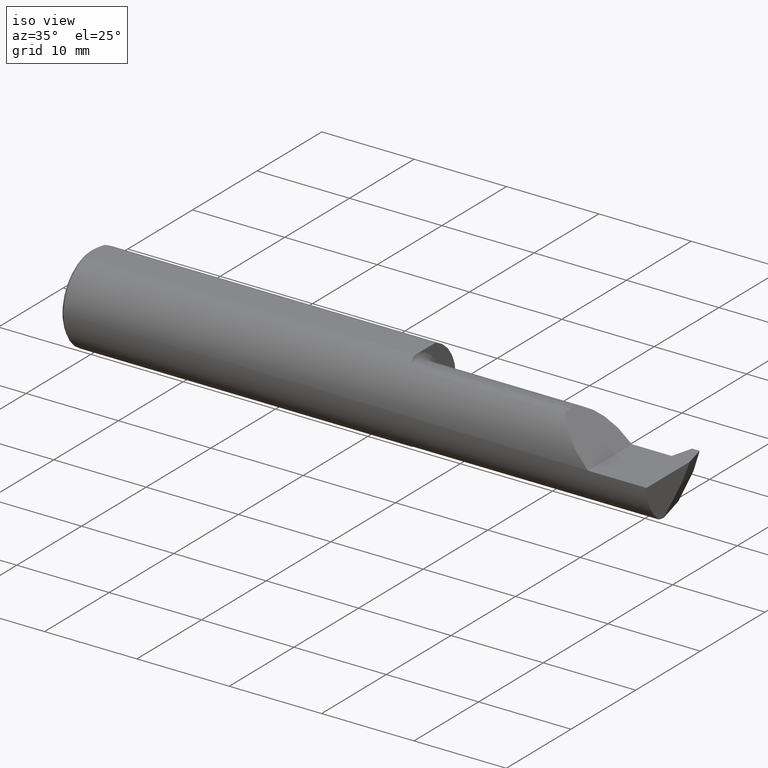
[diagram: clean part render]
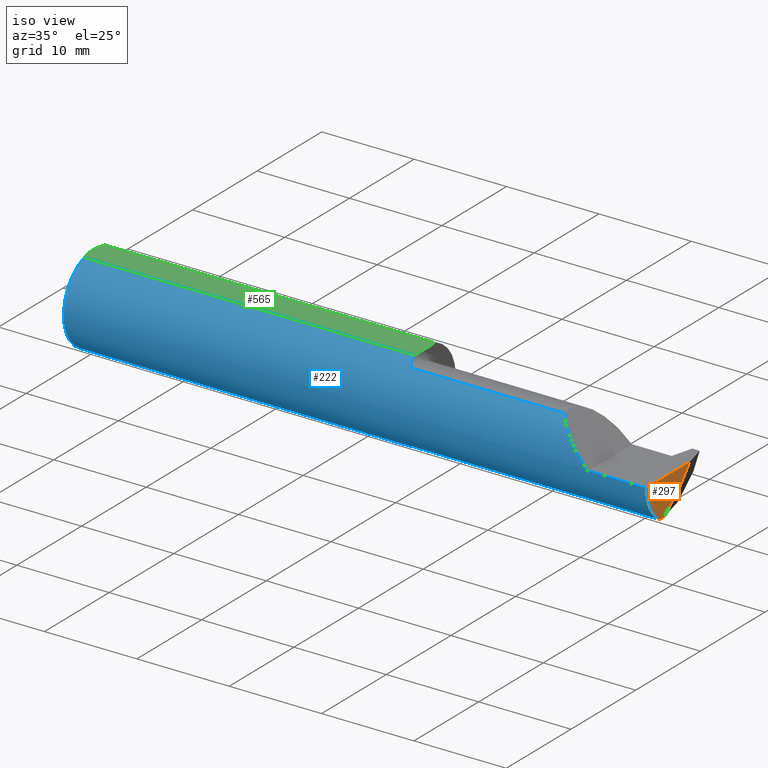
[diagram: same view with three faces highlighted in distinct colors, each labeled with its STEP entity id]
A machine part, iso view with three faces highlighted in distinct colors.
Their STEP definitions:

[orange] entity #297 — the highlighted planar face has unit normal (1, 0, 0).
#3 = VERTEX_POINT ( 'NONE', #661 ) ;
#19 = VECTOR ( 'NONE', #553, 39.37007874015748854 ) ;
#117 = DIRECTION ( 'NONE',  ( 0.000000000000000000, 0.000000000000000000, -1.000000000000000000 ) ) ;
#139 = CARTESIAN_POINT ( 'NONE',  ( 2.500000000000000000, 0.000000000000000000, 0.000000000000000000 ) ) ;
#152 = EDGE_CURVE ( 'NONE', #3, #543, #857, .T. ) ;
#161 = EDGE_CURVE ( 'NONE', #162, #543, #761, .T. ) ;
#162 = VERTEX_POINT ( 'NONE', #919 ) ;
#211 = ORIENTED_EDGE ( 'NONE', *, *, #152, .T. ) ;
#213 = LINE ( 'NONE', #965, #301 ) ;
#292 = VERTEX_POINT ( 'NONE', #495 ) ;
#297 = ADVANCED_FACE ( 'NONE', ( #419 ), #640, .T. ) ;
#301 = VECTOR ( 'NONE', #519, 39.37007874015748143 ) ;
#331 = CARTESIAN_POINT ( 'NONE',  ( 2.500000000000000000, 0.000000000000000000, 0.000000000000000000 ) ) ;
#340 = VERTEX_POINT ( 'NONE', #946 ) ;
#354 = CARTESIAN_POINT ( 'NONE',  ( 2.500000000000000000, -0.08199235869078237704, -0.1548576090188111543 ) ) ;
#409 = DIRECTION ( 'NONE',  ( 1.000000000000000000, 0.000000000000000000, 0.000000000000000000 ) ) ;
#419 = FACE_OUTER_BOUND ( 'NONE', #616, .T. ) ;
#429 = VECTOR ( 'NONE', #696, 39.37007874015748143 ) ;
#464 = CARTESIAN_POINT ( 'NONE',  ( 2.500000000000000000, 0.01913700171634197256, -0.06999999999999920175 ) ) ;
#495 = CARTESIAN_POINT ( 'NONE',  ( 2.500000000000000000, 0.07784888572242874838, 0.000000000000000000 ) ) ;
#502 = CARTESIAN_POINT ( 'NONE',  ( 2.500000000000000000, 0.04569972933712738300, -0.03833024582787393497 ) ) ;
#514 = LINE ( 'NONE', #502, #19 ) ;
#519 = DIRECTION ( 'NONE',  ( -0.000000000000000000, 1.000000000000000000, -0.000000000000000000 ) ) ;
#527 = ORIENTED_EDGE ( 'NONE', *, *, #528, .F. ) ;
#528 = EDGE_CURVE ( 'NONE', #340, #292, #213, .T. ) ;
#533 = EDGE_CURVE ( 'NONE', #340, #3, #854, .T. ) ;
#543 = VERTEX_POINT ( 'NONE', #354 ) ;
#553 = DIRECTION ( 'NONE',  ( 0.000000000000000000, -0.6426264403010705228, -0.7661796514042739092 ) ) ;
#615 = ORIENTED_EDGE ( 'NONE', *, *, #896, .F. ) ;
#616 = EDGE_LOOP ( 'NONE', ( #211, #930, #615, #527, #698 ) ) ;
#640 = PLANE ( 'NONE',  #836 ) ;
#661 = CARTESIAN_POINT ( 'NONE',  ( 2.500000000000000000, -0.1111655275381552010, -0.1508053314281814494 ) ) ;
#675 = DIRECTION ( 'NONE',  ( 0.000000000000000000, 0.000000000000000000, -1.000000000000000000 ) ) ;
#676 = CARTESIAN_POINT ( 'NONE',  ( 2.500000000000000000, -0.07535000000000005582, 0.000000000000000000 ) ) ;
#687 = DIRECTION ( 'NONE',  ( 1.000000000000000000, -0.000000000000000000, -0.000000000000000000 ) ) ;
#696 = DIRECTION ( 'NONE',  ( 0.000000000000000000, -0.7660444431189792347, -0.6427876096865379196 ) ) ;
#698 = ORIENTED_EDGE ( 'NONE', *, *, #533, .T. ) ;
#746 = DIRECTION ( 'NONE',  ( 1.000000000000000000, 0.000000000000000000, 0.000000000000000000 ) ) ;
#761 = LINE ( 'NONE', #464, #429 ) ;
#810 = AXIS2_PLACEMENT_3D ( 'NONE', #676, #687, #907 ) ;
#836 = AXIS2_PLACEMENT_3D ( 'NONE', #331, #409, #117 ) ;
#854 = CIRCLE ( 'NONE', #933, 0.1873499999999999888 ) ;
#857 = CIRCLE ( 'NONE', #810, 0.1549999999999999434 ) ;
#896 = EDGE_CURVE ( 'NONE', #292, #162, #514, .T. ) ;
#907 = DIRECTION ( 'NONE',  ( 0.000000000000000000, 0.000000000000000000, 1.000000000000000000 ) ) ;
#919 = CARTESIAN_POINT ( 'NONE',  ( 2.500000000000000000, 0.01913700171634197256, -0.06999999999999920175 ) ) ;
#930 = ORIENTED_EDGE ( 'NONE', *, *, #161, .F. ) ;
#933 = AXIS2_PLACEMENT_3D ( 'NONE', #139, #746, #675 ) ;
#946 = CARTESIAN_POINT ( 'NONE',  ( 2.500000000000000000, -0.1873500000000000165, -4.469813191451678053E-17 ) ) ;
#965 = CARTESIAN_POINT ( 'NONE',  ( 2.500000000000000000, 0.2000000000000000111, -4.469813191451678053E-17 ) ) ;

[blue] entity #222 — the highlighted cylindrical surface (partial cylindrical patch) has radius 4.7587 mm, axis along (-1, -0, -0).
#3 = VERTEX_POINT ( 'NONE', #661 ) ;
#11 = CARTESIAN_POINT ( 'NONE',  ( 1.447840824787754999, -0.1111655275381552566, 0.1508053314281813939 ) ) ;
#12 = CARTESIAN_POINT ( 'NONE',  ( 1.425000000000000266, 0.06325108694718213631, 0.1763499999999999790 ) ) ;
#15 = EDGE_LOOP ( 'NONE', ( #478, #164, #891, #99, #630, #54, #670, #855, #622, #92, #739, #633, #674, #884, #693 ) ) ;
#22 = VECTOR ( 'NONE', #897, 39.37007874015748143 ) ;
#35 = B_SPLINE_CURVE_WITH_KNOTS ( 'NONE', 3,
 ( #342, #273, #401, #729, #41, #187, #494, #346, #116, #644, #941, #873 ),
 .UNSPECIFIED., .F., .F.,
 ( 4, 2, 2, 2, 2, 4 ),
 ( 0.0005353161947638540065, 0.0008532056447682662310, 0.001171095094772678456, 0.001488984544777090680, 0.001647929269779296792, 0.001806873994781502905 ),
 .UNSPECIFIED. ) ;
#36 = CARTESIAN_POINT ( 'NONE',  ( 1.425000000000000266, 0.000000000000000000, 0.000000000000000000 ) ) ;
#39 = FACE_OUTER_BOUND ( 'NONE', #15, .T. ) ;
#41 = CARTESIAN_POINT ( 'NONE',  ( 1.431244079504313538, -0.09361870253556393850, -0.1623293170049111833 ) ) ;
#50 = CARTESIAN_POINT ( 'NONE',  ( 0.01500000000000079568, 0.000000000000000000, 0.000000000000000000 ) ) ;
#54 = ORIENTED_EDGE ( 'NONE', *, *, #215, .F. ) ;
#57 = CARTESIAN_POINT ( 'NONE',  ( 2.250000000000000000, 0.000000000000000000, 0.000000000000000000 ) ) ;
#64 = CIRCLE ( 'NONE', #199, 0.1873499999999999888 ) ;
#69 = CIRCLE ( 'NONE', #286, 0.1873499999999999888 ) ;
#87 = VERTEX_POINT ( 'NONE', #830 ) ;
#90 = DIRECTION ( 'NONE',  ( 1.000000000000000000, 0.000000000000000000, 0.000000000000000000 ) ) ;
#92 = ORIENTED_EDGE ( 'NONE', *, *, #195, .T. ) ;
#99 = ORIENTED_EDGE ( 'NONE', *, *, #539, .T. ) ;
#109 = B_SPLINE_CURVE_WITH_KNOTS ( 'NONE', 3,
 ( #978, #157, #238, #767 ),
 .UNSPECIFIED., .F., .F.,
 ( 4, 4 ),
 ( 0.000000000000000000, 0.0005353161947638540065 ),
 .UNSPECIFIED. ) ;
#113 = CYLINDRICAL_SURFACE ( 'NONE', #332, 0.1873499999999999888 ) ;
#116 = CARTESIAN_POINT ( 'NONE',  ( 1.442175898121774713, -0.1087238381091982370, -0.1525793326322721077 ) ) ;
#121 = CARTESIAN_POINT ( 'NONE',  ( 1.450000000000000178, -0.1111655275381552427, 0.1508053314281814494 ) ) ;
#129 = CIRCLE ( 'NONE', #685, 0.1873499999999999888 ) ;
#136 = CARTESIAN_POINT ( 'NONE',  ( 1.425439896557285868, -0.06737885671737320337, 0.1748695014197203801 ) ) ;
#139 = CARTESIAN_POINT ( 'NONE',  ( 2.500000000000000000, 0.000000000000000000, 0.000000000000000000 ) ) ;
#156 = CARTESIAN_POINT ( 'NONE',  ( 1.431253303781169661, -0.09363708362384966233, 0.1623181733163006346 ) ) ;
#157 = CARTESIAN_POINT ( 'NONE',  ( 1.425000000000000266, -0.06239895713696063523, -0.1767970804181337729 ) ) ;
#163 = EDGE_CURVE ( 'NONE', #905, #908, #109, .T. ) ;
#164 = ORIENTED_EDGE ( 'NONE', *, *, #533, .F. ) ;
#178 = CARTESIAN_POINT ( 'NONE',  ( 2.099544668571818207, -0.1111655275381547570, 0.1508053314281816715 ) ) ;
#180 = CARTESIAN_POINT ( 'NONE',  ( 1.425000000000000266, -0.05559153948241538773, -0.1789122780526117285 ) ) ;
#187 = CARTESIAN_POINT ( 'NONE',  ( 1.434565425567610131, -0.1003007981862104464, -0.1582877711856871539 ) ) ;
#190 = CARTESIAN_POINT ( 'NONE',  ( 2.500000000000000000, 0.000000000000000000, 0.000000000000000000 ) ) ;
#195 = EDGE_CURVE ( 'NONE', #915, #481, #129, .T. ) ;
#196 = DIRECTION ( 'NONE',  ( 0.000000000000000000, 0.000000000000000000, -1.000000000000000000 ) ) ;
#197 = CIRCLE ( 'NONE', #753, 0.1873499999999999888 ) ;
#199 = AXIS2_PLACEMENT_3D ( 'NONE', #50, #733, #196 ) ;
#209 = CARTESIAN_POINT ( 'NONE',  ( 1.426478687487613639, -0.07534999999999991704, 0.1715295892841814940 ) ) ;
#210 = CARTESIAN_POINT ( 'NONE',  ( 2.189466948591779705, -0.1872365873764759991, 0.06088305140821962530 ) ) ;
#215 = EDGE_CURVE ( 'NONE', #702, #319, #872, .T. ) ;
#222 = ADVANCED_FACE ( 'NONE', ( #39 ), #113, .T. ) ;
#238 = CARTESIAN_POINT ( 'NONE',  ( 1.425471628390130308, -0.06898398245409141649, -0.1743260713610383095 ) ) ;
#239 = VERTEX_POINT ( 'NONE', #12 ) ;
#241 = CARTESIAN_POINT ( 'NONE',  ( 2.500000000000000000, -0.06325108694718213631, 0.1763499999999999790 ) ) ;
#244 = DIRECTION ( 'NONE',  ( -1.000000000000000000, -0.000000000000000000, -0.000000000000000000 ) ) ;
#252 = VECTOR ( 'NONE', #90, 39.37007874015748143 ) ;
#273 = CARTESIAN_POINT ( 'NONE',  ( 1.427076714346777742, -0.07913036352372353199, -0.1698689405721950929 ) ) ;
#277 =( BOUNDED_CURVE ( )  B_SPLINE_CURVE ( 3, ( #743, #210, #516, #440 ),
 .UNSPECIFIED., .F., .T. ) 
 B_SPLINE_CURVE_WITH_KNOTS ( ( 4, 4 ),
 ( 4.714257142666966161, 5.647961724597865718 ),
 .UNSPECIFIED. ) 
 CURVE ( )  GEOMETRIC_REPRESENTATION_ITEM ( )  RATIONAL_B_SPLINE_CURVE ( ( 1.000000000000000000, 0.9286596154903572486, 0.9286596154903572486, 1.000000000000000000 ) ) 
 REPRESENTATION_ITEM ( '' )  );
#286 = AXIS2_PLACEMENT_3D ( 'NONE', #57, #298, #599 ) ;
#298 = DIRECTION ( 'NONE',  ( -1.000000000000000000, -0.000000000000000000, -0.000000000000000000 ) ) ;
#319 = VERTEX_POINT ( 'NONE', #178 ) ;
#332 = AXIS2_PLACEMENT_3D ( 'NONE', #190, #244, #800 ) ;
#335 = CARTESIAN_POINT ( 'NONE',  ( 1.426478687487605646, -0.07534999999994895781, -0.1715295892842039482 ) ) ;
#340 = VERTEX_POINT ( 'NONE', #946 ) ;
#342 = CARTESIAN_POINT ( 'NONE',  ( 1.426478687487605646, -0.07534999999994895781, -0.1715295892842039482 ) ) ;
#346 = CARTESIAN_POINT ( 'NONE',  ( 1.440623984237018762, -0.1074936703607914240, -0.1534529456673628667 ) ) ;
#367 = EDGE_CURVE ( 'NONE', #3, #559, #856, .T. ) ;
#371 = CARTESIAN_POINT ( 'NONE',  ( 2.500000000000000000, 0.06325108694718213631, 0.1763499999999999790 ) ) ;
#376 = VECTOR ( 'NONE', #904, 39.37007874015748143 ) ;
#394 = CARTESIAN_POINT ( 'NONE',  ( 0.01500000000000016251, -0.06325108694718359348, 0.1763499999999999790 ) ) ;
#396 = CARTESIAN_POINT ( 'NONE',  ( 0.01500000000000079568, 0.000000000000000000, 0.000000000000000000 ) ) ;
#401 = CARTESIAN_POINT ( 'NONE',  ( 1.427865082443893652, -0.08283314709417988198, -0.1680932348365286877 ) ) ;
#411 = VERTEX_POINT ( 'NONE', #522 ) ;
#420 = DIRECTION ( 'NONE',  ( 1.000000000000000000, -0.000000000000000000, -0.000000000000000000 ) ) ;
#437 = CARTESIAN_POINT ( 'NONE',  ( 2.250000000000000000, -0.1873499999999999888, -4.469813191451678053E-17 ) ) ;
#440 = CARTESIAN_POINT ( 'NONE',  ( 2.099544668571818207, -0.1111655275381547570, 0.1508053314281816715 ) ) ;
#444 = CARTESIAN_POINT ( 'NONE',  ( 1.425210246786176915, -0.06325108694718213631, 0.1763499999999999790 ) ) ;
#447 = CARTESIAN_POINT ( 'NONE',  ( 1.440624326360086638, -0.1074933921529483416, 0.1534530870474001274 ) ) ;
#459 = CARTESIAN_POINT ( 'NONE',  ( 1.429954557781144331, -0.09009039404888789793, 0.1643178600608700690 ) ) ;
#465 = EDGE_CURVE ( 'NONE', #87, #319, #277, .T. ) ;
#472 = EDGE_CURVE ( 'NONE', #486, #239, #738, .T. ) ;
#473 = EDGE_CURVE ( 'NONE', #340, #484, #818, .T. ) ;
#475 = EDGE_CURVE ( 'NONE', #845, #411, #703, .T. ) ;
#478 = ORIENTED_EDGE ( 'NONE', *, *, #367, .F. ) ;
#481 = VERTEX_POINT ( 'NONE', #889 ) ;
#484 = VERTEX_POINT ( 'NONE', #437 ) ;
#485 = CARTESIAN_POINT ( 'NONE',  ( 1.922500000000000098, -0.1111655275381552427, -0.1508053314281814494 ) ) ;
#486 = VERTEX_POINT ( 'NONE', #882 ) ;
#492 = CARTESIAN_POINT ( 'NONE',  ( 1.922500000000000098, -0.1111655275381552427, 0.1508053314281814494 ) ) ;
#494 = CARTESIAN_POINT ( 'NONE',  ( 1.436554031168356005, -0.1034518926464918220, -0.1562319468430166391 ) ) ;
#505 = VECTOR ( 'NONE', #942, 39.37007874015748143 ) ;
#516 = CARTESIAN_POINT ( 'NONE',  ( 2.135462471271803331, -0.1598910295916955993, 0.1148875287281965335 ) ) ;
#522 = CARTESIAN_POINT ( 'NONE',  ( 1.425210246786176915, -0.06325108694718213631, 0.1763499999999999790 ) ) ;
#524 = CARTESIAN_POINT ( 'NONE',  ( 1.426478687487613639, -0.07534999999999991704, 0.1715295892841814940 ) ) ;
#533 = EDGE_CURVE ( 'NONE', #340, #3, #854, .T. ) ;
#539 = EDGE_CURVE ( 'NONE', #484, #87, #69, .T. ) ;
#559 = VERTEX_POINT ( 'NONE', #953 ) ;
#591 = DIRECTION ( 'NONE',  ( -1.000000000000000000, -0.000000000000000000, -0.000000000000000000 ) ) ;
#597 = CARTESIAN_POINT ( 'NONE',  ( 2.500000000000000000, -0.1873499999999999888, -4.469813191451678053E-17 ) ) ;
#599 = DIRECTION ( 'NONE',  ( 0.000000000000000000, 0.000000000000000000, 1.000000000000000000 ) ) ;
#603 = CARTESIAN_POINT ( 'NONE',  ( 1.427079511614913754, -0.07914804615830652035, 0.1698611728947836963 ) ) ;
#622 = ORIENTED_EDGE ( 'NONE', *, *, #968, .T. ) ;
#624 = CARTESIAN_POINT ( 'NONE',  ( 1.442178388317598259, -0.1087237717143361843, 0.1525793417461625279 ) ) ;
#630 = ORIENTED_EDGE ( 'NONE', *, *, #465, .T. ) ;
#633 = ORIENTED_EDGE ( 'NONE', *, *, #472, .T. ) ;
#644 = CARTESIAN_POINT ( 'NONE',  ( 1.445787183057445136, -0.1105751300725857506, -0.1512430703507947061 ) ) ;
#657 = EDGE_CURVE ( 'NONE', #702, #845, #763, .T. ) ;
#661 = CARTESIAN_POINT ( 'NONE',  ( 2.500000000000000000, -0.1111655275381552010, -0.1508053314281814494 ) ) ;
#669 = CARTESIAN_POINT ( 'NONE',  ( 1.425855685269239892, -0.07141175738523403149, 0.1732595915669420672 ) ) ;
#670 = ORIENTED_EDGE ( 'NONE', *, *, #657, .T. ) ;
#674 = ORIENTED_EDGE ( 'NONE', *, *, #745, .F. ) ;
#675 = DIRECTION ( 'NONE',  ( 0.000000000000000000, 0.000000000000000000, -1.000000000000000000 ) ) ;
#681 = CARTESIAN_POINT ( 'NONE',  ( 1.427871177471788711, -0.08285827945689638874, 0.1680807655869951678 ) ) ;
#685 = AXIS2_PLACEMENT_3D ( 'NONE', #396, #420, #947 ) ;
#686 = CARTESIAN_POINT ( 'NONE',  ( 1.450000000000000178, -0.1111655275381552427, 0.1508053314281814494 ) ) ;
#693 = ORIENTED_EDGE ( 'NONE', *, *, #749, .T. ) ;
#702 = VERTEX_POINT ( 'NONE', #121 ) ;
#703 = B_SPLINE_CURVE_WITH_KNOTS ( 'NONE', 3,
 ( #524, #669, #136, #444 ),
 .UNSPECIFIED., .F., .F.,
 ( 4, 4 ),
 ( 0.001294476306160001564, 0.001630041063685024744 ),
 .UNSPECIFIED. ) ;
#711 = VECTOR ( 'NONE', #591, 39.37007874015748143 ) ;
#718 = DIRECTION ( 'NONE',  ( 1.000000000000000000, 0.000000000000000000, 0.000000000000000000 ) ) ;
#729 = CARTESIAN_POINT ( 'NONE',  ( 1.429948053471883807, -0.09007176591159221646, -0.1643281559590496765 ) ) ;
#733 = DIRECTION ( 'NONE',  ( 1.000000000000000000, -0.000000000000000000, -0.000000000000000000 ) ) ;
#738 = LINE ( 'NONE', #371, #22 ) ;
#739 = ORIENTED_EDGE ( 'NONE', *, *, #892, .T. ) ;
#743 = CARTESIAN_POINT ( 'NONE',  ( 2.250000000000000000, -0.1873496730715054903, 0.0003499999999991848933 ) ) ;
#745 = EDGE_CURVE ( 'NONE', #905, #239, #197, .T. ) ;
#746 = DIRECTION ( 'NONE',  ( 1.000000000000000000, 0.000000000000000000, 0.000000000000000000 ) ) ;
#749 = EDGE_CURVE ( 'NONE', #908, #559, #35, .T. ) ;
#753 = AXIS2_PLACEMENT_3D ( 'NONE', #36, #718, #802 ) ;
#754 = CARTESIAN_POINT ( 'NONE',  ( 1.436565098989692979, -0.1034641170928918136, 0.1562236412899350446 ) ) ;
#760 = CARTESIAN_POINT ( 'NONE',  ( 1.434555280550786627, -0.1002805646452516880, 0.1583000352897936946 ) ) ;
#763 = B_SPLINE_CURVE_WITH_KNOTS ( 'NONE', 3,
 ( #686, #11, #839, #624, #447, #754, #760, #156, #459, #681, #603, #974 ),
 .UNSPECIFIED., .F., .F.,
 ( 4, 2, 2, 2, 2, 4 ),
 ( 0.000000000000000000, 0.0001618095382699952353, 0.0003236190765399904706, 0.0006472381530799941685, 0.0009708572296199979206, 0.001294476306160001564 ),
 .UNSPECIFIED. ) ;
#767 = CARTESIAN_POINT ( 'NONE',  ( 1.426478687487605646, -0.07534999999994895781, -0.1715295892842039482 ) ) ;
#800 = DIRECTION ( 'NONE',  ( 0.000000000000000000, 0.000000000000000000, 1.000000000000000000 ) ) ;
#802 = DIRECTION ( 'NONE',  ( 0.000000000000000000, 0.000000000000000000, -1.000000000000000000 ) ) ;
#818 = LINE ( 'NONE', #597, #711 ) ;
#830 = CARTESIAN_POINT ( 'NONE',  ( 2.250000000000000000, -0.1873496730715054903, 0.0003499999999991848933 ) ) ;
#839 = CARTESIAN_POINT ( 'NONE',  ( 1.445768331180431909, -0.1105668026956974082, 0.1512491196838317842 ) ) ;
#845 = VERTEX_POINT ( 'NONE', #209 ) ;
#854 = CIRCLE ( 'NONE', #933, 0.1873499999999999888 ) ;
#855 = ORIENTED_EDGE ( 'NONE', *, *, #475, .T. ) ;
#856 = LINE ( 'NONE', #485, #505 ) ;
#872 = LINE ( 'NONE', #492, #252 ) ;
#873 = CARTESIAN_POINT ( 'NONE',  ( 1.450000000000000178, -0.1111655275381552427, -0.1508053314281814494 ) ) ;
#882 = CARTESIAN_POINT ( 'NONE',  ( 0.01500000000000079568, 0.06325108694718213631, 0.1763499999999999790 ) ) ;
#884 = ORIENTED_EDGE ( 'NONE', *, *, #163, .T. ) ;
#889 = CARTESIAN_POINT ( 'NONE',  ( 0.01500000000000079568, 0.000000000000000000, -0.1873499999999999888 ) ) ;
#891 = ORIENTED_EDGE ( 'NONE', *, *, #473, .T. ) ;
#892 = EDGE_CURVE ( 'NONE', #481, #486, #64, .T. ) ;
#897 = DIRECTION ( 'NONE',  ( 1.000000000000000000, 0.000000000000000000, 0.000000000000000000 ) ) ;
#904 = DIRECTION ( 'NONE',  ( -1.000000000000000000, -0.000000000000000000, -0.000000000000000000 ) ) ;
#905 = VERTEX_POINT ( 'NONE', #180 ) ;
#908 = VERTEX_POINT ( 'NONE', #335 ) ;
#915 = VERTEX_POINT ( 'NONE', #394 ) ;
#933 = AXIS2_PLACEMENT_3D ( 'NONE', #139, #746, #675 ) ;
#941 = CARTESIAN_POINT ( 'NONE',  ( 1.447842917297106791, -0.1111655275381357721, -0.1508053314282012392 ) ) ;
#942 = DIRECTION ( 'NONE',  ( -1.000000000000000000, -0.000000000000000000, -0.000000000000000000 ) ) ;
#946 = CARTESIAN_POINT ( 'NONE',  ( 2.500000000000000000, -0.1873500000000000165, -4.469813191451678053E-17 ) ) ;
#947 = DIRECTION ( 'NONE',  ( 0.000000000000000000, 0.000000000000000000, -1.000000000000000000 ) ) ;
#953 = CARTESIAN_POINT ( 'NONE',  ( 1.450000000000000178, -0.1111655275381552427, -0.1508053314281814494 ) ) ;
#968 = EDGE_CURVE ( 'NONE', #411, #915, #976, .T. ) ;
#974 = CARTESIAN_POINT ( 'NONE',  ( 1.426478687487613639, -0.07534999999999991704, 0.1715295892841814940 ) ) ;
#976 = LINE ( 'NONE', #241, #376 ) ;
#978 = CARTESIAN_POINT ( 'NONE',  ( 1.425000000000000266, -0.05559153948241538773, -0.1789122780526117285 ) ) ;

[green] entity #565 — the highlighted planar face has unit normal (-0, 0, -1).
#12 = CARTESIAN_POINT ( 'NONE',  ( 1.425000000000000266, 0.06325108694718213631, 0.1763499999999999790 ) ) ;
#22 = VECTOR ( 'NONE', #897, 39.37007874015748143 ) ;
#82 = CARTESIAN_POINT ( 'NONE',  ( 0.004000000000000698309, 2.159664630174422375E-17, 0.1763499999999999790 ) ) ;
#144 = DIRECTION ( 'NONE',  ( -0.000000000000000000, 0.000000000000000000, -1.000000000000000000 ) ) ;
#184 = CARTESIAN_POINT ( 'NONE',  ( 1.425000000000000266, -0.04727406520530673395, 0.1763499999999999790 ) ) ;
#204 = CARTESIAN_POINT ( 'NONE',  ( 0.008079618022130599653, 0.04275288484297749825, 0.1763499999999999790 ) ) ;
#228 = ORIENTED_EDGE ( 'NONE', *, *, #262, .T. ) ;
#239 = VERTEX_POINT ( 'NONE', #12 ) ;
#241 = CARTESIAN_POINT ( 'NONE',  ( 2.500000000000000000, -0.06325108694718213631, 0.1763499999999999790 ) ) ;
#262 = EDGE_CURVE ( 'NONE', #411, #846, #477, .T. ) ;
#269 = EDGE_CURVE ( 'NONE', #239, #846, #416, .T. ) ;
#279 = CARTESIAN_POINT ( 'NONE',  ( 0.01500000000000079568, 0.06325108694718213631, 0.1763499999999999790 ) ) ;
#302 = B_SPLINE_CURVE_WITH_KNOTS ( 'NONE', 3,
 ( #364, #826, #960, #665 ),
 .UNSPECIFIED., .F., .F.,
 ( 4, 4 ),
 ( 0.005496776235116787243, 0.007121625476792169465 ),
 .UNSPECIFIED. ) ;
#322 = CARTESIAN_POINT ( 'NONE',  ( 0.004000000000000698309, 0.02174349820064850128, 0.1763499999999999790 ) ) ;
#349 = CARTESIAN_POINT ( 'NONE',  ( 1.425138881465989549, -0.05526243373525235869, 0.1763499999999999790 ) ) ;
#364 = CARTESIAN_POINT ( 'NONE',  ( 0.004000000000000698309, 2.159664630174422375E-17, 0.1763499999999999790 ) ) ;
#371 = CARTESIAN_POINT ( 'NONE',  ( 2.500000000000000000, 0.06325108694718213631, 0.1763499999999999790 ) ) ;
#376 = VECTOR ( 'NONE', #904, 39.37007874015748143 ) ;
#377 = VECTOR ( 'NONE', #723, 39.37007874015748143 ) ;
#382 = VERTEX_POINT ( 'NONE', #719 ) ;
#394 = CARTESIAN_POINT ( 'NONE',  ( 0.01500000000000016251, -0.06325108694718359348, 0.1763499999999999790 ) ) ;
#397 = ORIENTED_EDGE ( 'NONE', *, *, #472, .F. ) ;
#411 = VERTEX_POINT ( 'NONE', #522 ) ;
#416 = LINE ( 'NONE', #625, #377 ) ;
#472 = EDGE_CURVE ( 'NONE', #486, #239, #738, .T. ) ;
#477 = B_SPLINE_CURVE_WITH_KNOTS ( 'NONE', 3,
 ( #868, #349, #184, #795 ),
 .UNSPECIFIED., .F., .F.,
 ( 4, 4 ),
 ( 1.084202172485504434E-18, 0.0006087596641710211901 ),
 .UNSPECIFIED. ) ;
#486 = VERTEX_POINT ( 'NONE', #882 ) ;
#511 = ORIENTED_EDGE ( 'NONE', *, *, #968, .F. ) ;
#521 = EDGE_CURVE ( 'NONE', #382, #915, #302, .T. ) ;
#522 = CARTESIAN_POINT ( 'NONE',  ( 1.425210246786176915, -0.06325108694718213631, 0.1763499999999999790 ) ) ;
#546 = PLANE ( 'NONE',  #635 ) ;
#550 = EDGE_CURVE ( 'NONE', #486, #382, #587, .T. ) ;
#565 = ADVANCED_FACE ( 'NONE', ( #923 ), #546, .F. ) ;
#571 = ORIENTED_EDGE ( 'NONE', *, *, #550, .T. ) ;
#587 = B_SPLINE_CURVE_WITH_KNOTS ( 'NONE', 3,
 ( #279, #204, #322, #82 ),
 .UNSPECIFIED., .F., .F.,
 ( 4, 4 ),
 ( 0.003872958501701110473, 0.005496776235116787243 ),
 .UNSPECIFIED. ) ;
#608 = CARTESIAN_POINT ( 'NONE',  ( 0.000000000000000000, 0.1000000000000000056, 0.1763499999999999790 ) ) ;
#625 = CARTESIAN_POINT ( 'NONE',  ( 1.425000000000000266, 0.1000000000000000056, 0.1763499999999999790 ) ) ;
#635 = AXIS2_PLACEMENT_3D ( 'NONE', #608, #144, #833 ) ;
#665 = CARTESIAN_POINT ( 'NONE',  ( 0.01500000000000016251, -0.06325108694718359348, 0.1763499999999999790 ) ) ;
#667 = EDGE_LOOP ( 'NONE', ( #741, #397, #571, #825, #511, #228 ) ) ;
#719 = CARTESIAN_POINT ( 'NONE',  ( 0.004000000000000698309, 2.159664630174422375E-17, 0.1763499999999999790 ) ) ;
#723 = DIRECTION ( 'NONE',  ( 0.000000000000000000, -1.000000000000000000, 0.000000000000000000 ) ) ;
#737 = CARTESIAN_POINT ( 'NONE',  ( 1.425000000000000266, -0.03928509323455842139, 0.1763499999999999790 ) ) ;
#738 = LINE ( 'NONE', #371, #22 ) ;
#741 = ORIENTED_EDGE ( 'NONE', *, *, #269, .F. ) ;
#795 = CARTESIAN_POINT ( 'NONE',  ( 1.425000000000000266, -0.03928509323455842139, 0.1763499999999999790 ) ) ;
#825 = ORIENTED_EDGE ( 'NONE', *, *, #521, .T. ) ;
#826 = CARTESIAN_POINT ( 'NONE',  ( 0.004000000000000693105, -0.02175731046388915818, 0.1763499999999999790 ) ) ;
#833 = DIRECTION ( 'NONE',  ( -1.000000000000000000, 0.000000000000000000, 0.000000000000000000 ) ) ;
#846 = VERTEX_POINT ( 'NONE', #737 ) ;
#868 = CARTESIAN_POINT ( 'NONE',  ( 1.425210246786176915, -0.06325108694718213631, 0.1763499999999999790 ) ) ;
#882 = CARTESIAN_POINT ( 'NONE',  ( 0.01500000000000079568, 0.06325108694718213631, 0.1763499999999999790 ) ) ;
#897 = DIRECTION ( 'NONE',  ( 1.000000000000000000, 0.000000000000000000, 0.000000000000000000 ) ) ;
#904 = DIRECTION ( 'NONE',  ( -1.000000000000000000, -0.000000000000000000, -0.000000000000000000 ) ) ;
#915 = VERTEX_POINT ( 'NONE', #394 ) ;
#923 = FACE_OUTER_BOUND ( 'NONE', #667, .T. ) ;
#960 = CARTESIAN_POINT ( 'NONE',  ( 0.008096539338608545536, -0.04280300585742017466, 0.1763499999999999790 ) ) ;
#968 = EDGE_CURVE ( 'NONE', #411, #915, #976, .T. ) ;
#976 = LINE ( 'NONE', #241, #376 ) ;